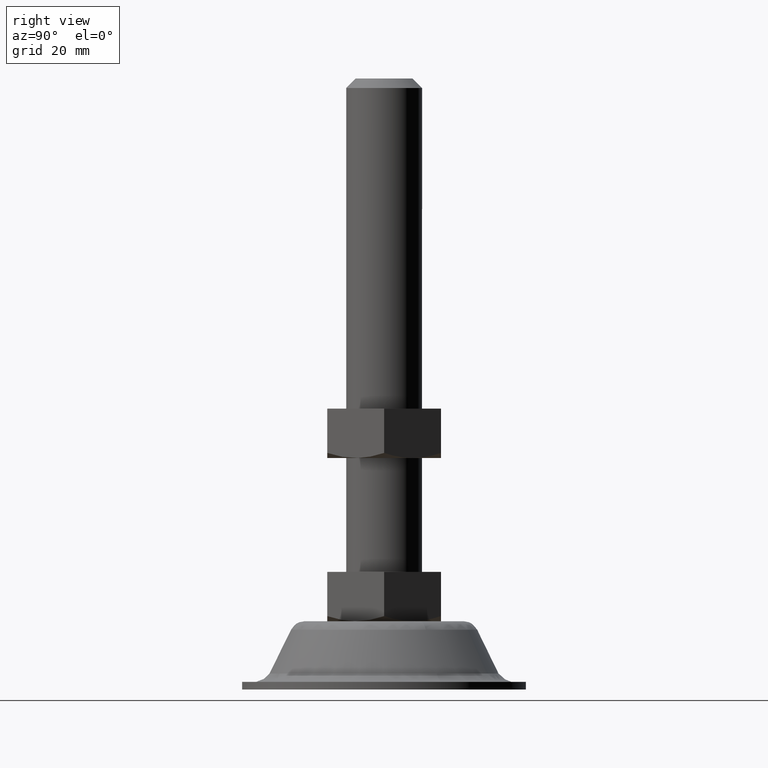
[diagram: clean part render]
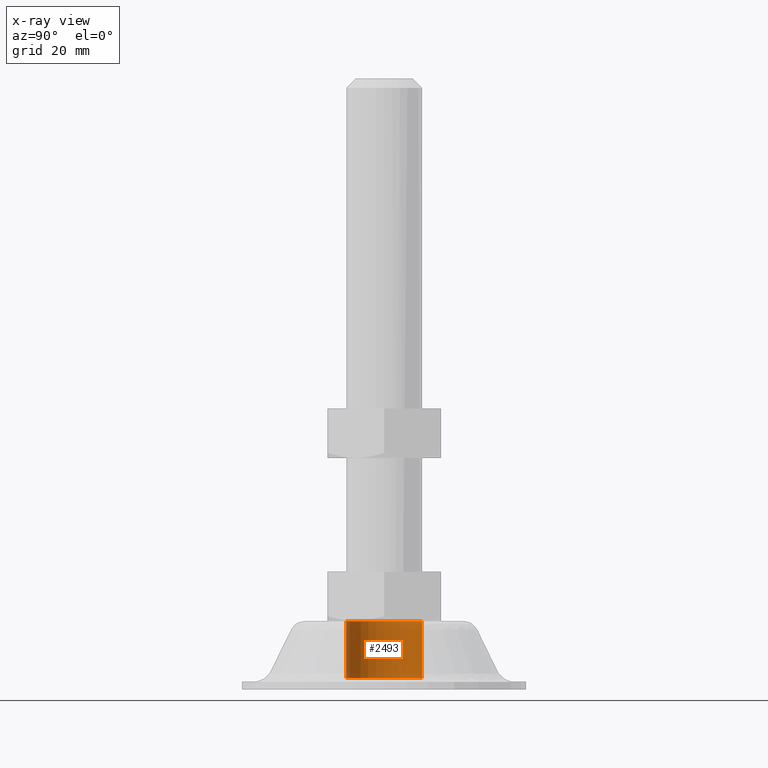
[diagram: x-ray — body ghosted, one internal face saturated and labeled with its STEP entity id]
A machine part, right view, then the same camera in x-ray: the body is ghosted and one INTERNAL B-rep face — a face not visible from any outside direction — is saturated and labeled: STEP entity #2493.
In plain terms, the highlighted face is a freeform B-spline surface patch.
Its self-contained STEP definition (entity closure, byte-faithful):
#2326=CARTESIAN_POINT('',(1.241280021034278,9.922662138225865,18.000000000000249));
#2327=VERTEX_POINT('',#2326);
#2343=CARTESIAN_POINT('',(-0.087265355290802,-9.999619230639031,18.000000000000249));
#2344=VERTEX_POINT('',#2343);
#2360=CARTESIAN_POINT('',(-0.087265355261292,-9.999619230639290,3.000000000000226));
#2361=VERTEX_POINT('',#2360);
#2362=CARTESIAN_POINT('',(-0.087265355290802,-9.999619230639031,18.000000000000249));
#2363=CARTESIAN_POINT('',(-0.087265355261292,-9.999619230639290,3.000000000000226));
#2364=QUASI_UNIFORM_CURVE('',1,(#2362,#2363),.UNSPECIFIED.,.F.,.U.);
#2365=EDGE_CURVE('',#2344,#2361,#2364,.T.);
#2384=CARTESIAN_POINT('',(1.241280020968919,9.922662138234042,3.000000000000225));
#2385=VERTEX_POINT('',#2384);
#2399=CARTESIAN_POINT('',(1.241280021034278,9.922662138225865,18.000000000000249));
#2400=CARTESIAN_POINT('',(1.241280020968919,9.922662138234042,3.000000000000225));
#2401=QUASI_UNIFORM_CURVE('',1,(#2399,#2400),.UNSPECIFIED.,.F.,.U.);
#2402=EDGE_CURVE('',#2327,#2385,#2401,.T.);
#2407=CARTESIAN_POINT('',(-0.087265354983739,-9.999619230641709,18.375000000000249));
#2408=CARTESIAN_POINT('',(-10.086884585625448,-9.912353875657971,18.375000000000252));
#2409=CARTESIAN_POINT('',(-9.999619230641709,0.087265354983739,18.375000000000249));
#2410=CARTESIAN_POINT('',(-9.912353875657971,10.086884585625448,18.375000000000252));
#2411=CARTESIAN_POINT('',(0.087265354983739,9.999619230641709,18.375000000000249));
#2412=CARTESIAN_POINT('',(0.666501589581736,9.994564312602755,18.375000000000249));
#2413=CARTESIAN_POINT('',(1.241280020798293,9.922662138255385,18.375000000000245));
#2414=CARTESIAN_POINT('',(-0.087265354983739,-9.999619230641709,2.615625000000222));
#2415=CARTESIAN_POINT('',(-10.086884585625448,-9.912353875657971,2.615625000000221));
#2416=CARTESIAN_POINT('',(-9.999619230641709,0.087265354983739,2.615625000000222));
#2417=CARTESIAN_POINT('',(-9.912353875657971,10.086884585625448,2.615625000000221));
#2418=CARTESIAN_POINT('',(0.087265354983739,9.999619230641709,2.615625000000222));
#2419=CARTESIAN_POINT('',(0.666501589581736,9.994564312602755,2.615625000000222));
#2420=CARTESIAN_POINT('',(1.241280020798293,9.922662138255385,2.615625000000222));
#2428=(BOUNDED_SURFACE()B_SPLINE_SURFACE(2,1,((#2407,#2414),(#2408,#2415),(#2409,#2416),(#2410,#2417),(#2411,#2418),(#2412,#2419),(#2413,#2420)),.UNSPECIFIED.,.F.,.F.,.U.)B_SPLINE_SURFACE_WITH_KNOTS((3,2,2,3),(2,2),(0.0,16.568542494923800,33.137084989847587,34.462568389441500),(0.0,15.759375000000031),.UNSPECIFIED.)GEOMETRIC_REPRESENTATION_ITEM()RATIONAL_B_SPLINE_SURFACE(((1.0,1.0),(0.707106781186548,0.707106781186548),(1.0,1.0),(0.707106781186548,0.707106781186548),(1.0,1.0),(0.976568542494924,0.976568542494924),(0.956886118190660,0.956886118190660)))REPRESENTATION_ITEM('')SURFACE());
#2429=CARTESIAN_POINT('',(-10.0,0.0,18.000000000000249));
#2430=VERTEX_POINT('',#2429);
#2431=CARTESIAN_POINT('',(-10.0,0.0,18.000000000000249));
#2432=CARTESIAN_POINT('',(-10.000000000000002,10.000000000000002,18.000000000000245));
#2433=CARTESIAN_POINT('',(0.0,10.0,18.000000000000249));
#2434=CARTESIAN_POINT('',(0.623049275573687,10.0,18.000000000000242));
#2435=CARTESIAN_POINT('',(1.241280021034278,9.922662138225865,18.000000000000245));
#2443=(BOUNDED_CURVE()B_SPLINE_CURVE(2,(#2431,#2432,#2433,#2434,#2435),.UNSPECIFIED.,.F.,.U.)B_SPLINE_CURVE_WITH_KNOTS((3,2,3),(0.500000000000000,0.750000000000000,0.771473928978723),.UNSPECIFIED.)CURVE()GEOMETRIC_REPRESENTATION_ITEM()RATIONAL_B_SPLINE_CURVE((1.0,0.707106781186548,1.0,0.974841727283402,0.954005430259152))REPRESENTATION_ITEM(''));
#2444=EDGE_CURVE('',#2430,#2327,#2443,.T.);
#2445=ORIENTED_EDGE('',*,*,#2444,.T.);
#2446=ORIENTED_EDGE('',*,*,#2402,.T.);
#2447=CARTESIAN_POINT('',(-10.0,0.0,3.000000000000225));
#2448=VERTEX_POINT('',#2447);
#2449=CARTESIAN_POINT('',(1.241280020968920,9.922662138234042,3.000000000000225));
#2450=CARTESIAN_POINT('',(0.623049275507567,10.0,3.000000000000225));
#2451=CARTESIAN_POINT('',(0.0,10.0,3.000000000000225));
#2452=CARTESIAN_POINT('',(-10.000000000000002,10.000000000000002,3.000000000000225));
#2453=CARTESIAN_POINT('',(-10.0,0.0,3.000000000000225));
#2461=(BOUNDED_CURVE()B_SPLINE_CURVE(2,(#2449,#2450,#2451,#2452,#2453),.UNSPECIFIED.,.F.,.U.)B_SPLINE_CURVE_WITH_KNOTS((3,2,3),(0.728526071023499,0.750000000000000,1.0),.UNSPECIFIED.)CURVE()GEOMETRIC_REPRESENTATION_ITEM()RATIONAL_B_SPLINE_CURVE((0.954005430263463,0.974841727286004,1.0,0.707106781186548,1.0))REPRESENTATION_ITEM(''));
#2462=EDGE_CURVE('',#2385,#2448,#2461,.T.);
#2463=ORIENTED_EDGE('',*,*,#2462,.T.);
#2464=CARTESIAN_POINT('',(-10.0,0.0,3.000000000000225));
#2465=CARTESIAN_POINT('',(-10.0,-9.913112105399460,3.000000000000225));
#2466=CARTESIAN_POINT('',(-0.087265355261292,-9.999619230639290,3.000000000000225));
#2474=(BOUNDED_CURVE()B_SPLINE_CURVE(2,(#2464,#2465,#2466),.UNSPECIFIED.,.F.,.U.)B_SPLINE_CURVE_WITH_KNOTS((3,3),(0.0,0.248460105655235),.UNSPECIFIED.)CURVE()GEOMETRIC_REPRESENTATION_ITEM()RATIONAL_B_SPLINE_CURVE((1.0,0.708910879631631,0.996414028077776))REPRESENTATION_ITEM(''));
#2475=EDGE_CURVE('',#2448,#2361,#2474,.T.);
#2476=ORIENTED_EDGE('',*,*,#2475,.T.);
#2477=ORIENTED_EDGE('',*,*,#2365,.F.);
#2478=CARTESIAN_POINT('',(-0.087265355290802,-9.999619230639031,18.000000000000245));
#2479=CARTESIAN_POINT('',(-10.0,-9.913112105340945,18.000000000000256));
#2480=CARTESIAN_POINT('',(-10.0,0.0,18.000000000000249));
#2488=(BOUNDED_CURVE()B_SPLINE_CURVE(2,(#2478,#2479,#2480),.UNSPECIFIED.,.F.,.U.)B_SPLINE_CURVE_WITH_KNOTS((3,3),(0.251539894345805,0.500000000000000),.UNSPECIFIED.)CURVE()GEOMETRIC_REPRESENTATION_ITEM()RATIONAL_B_SPLINE_CURVE((0.996414028075370,0.708910879632849,1.0))REPRESENTATION_ITEM(''));
#2489=EDGE_CURVE('',#2344,#2430,#2488,.T.);
#2490=ORIENTED_EDGE('',*,*,#2489,.T.);
#2491=EDGE_LOOP('',(#2445,#2446,#2463,#2476,#2477,#2490));
#2492=FACE_OUTER_BOUND('',#2491,.T.);
#2493=ADVANCED_FACE('',(#2492),#2428,.T.);